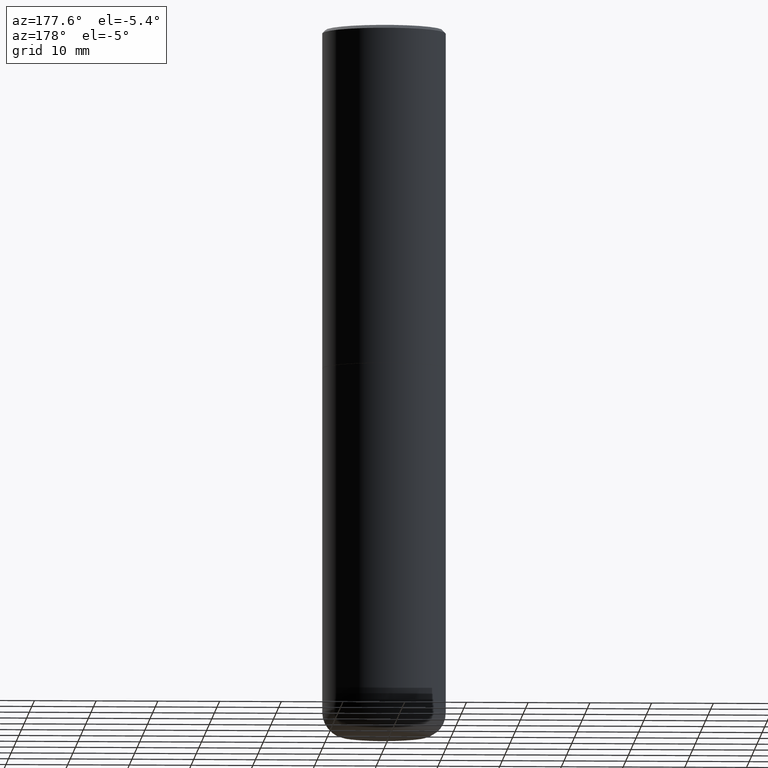
[diagram: clean part render]
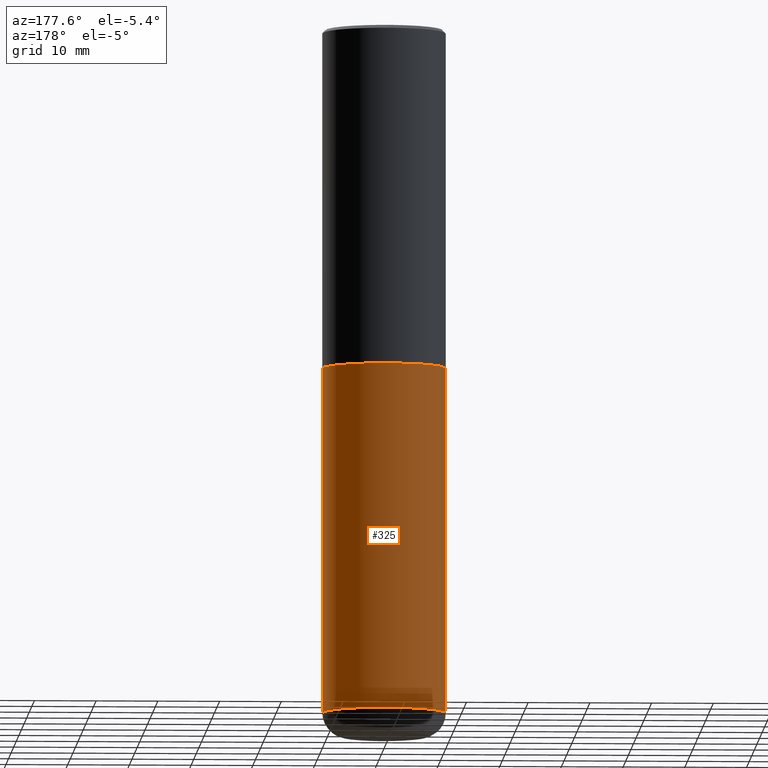
[diagram: same view with one face highlighted and labeled with its STEP entity id]
A machine part, auxiliary view. The second image highlights one B-rep face of the part: STEP entity #325.
In plain terms, the highlighted cylindrical surface (partial cylindrical patch) has radius 10 mm, axis along (-0, 0, 1).
Its self-contained STEP definition (entity closure, byte-faithful):
#1 = EDGE_CURVE ( 'NONE', #216, #47, #155, .T. ) ;
#3 = CARTESIAN_POINT ( 'NONE',  ( -0.3937000000000001054, -1.246071584819091497E-14, -4.370099999999998985 ) ) ;
#13 = LINE ( 'NONE', #203, #262 ) ;
#17 = DIRECTION ( 'NONE',  ( 1.000000000000000000, -6.982962677686261977E-15, 0.000000000000000000 ) ) ;
#20 = ORIENTED_EDGE ( 'NONE', *, *, #402, .F. ) ;
#36 = VECTOR ( 'NONE', #306, 39.37007874015748143 ) ;
#47 = VERTEX_POINT ( 'NONE', #3 ) ;
#51 = CIRCLE ( 'NONE', #315, 0.3937000000000000499 ) ;
#57 = ORIENTED_EDGE ( 'NONE', *, *, #1, .T. ) ;
#58 = DIRECTION ( 'NONE',  ( -2.445468806185136597E-29, 3.491481338843145583E-15, 1.000000000000000000 ) ) ;
#65 = EDGE_CURVE ( 'NONE', #47, #412, #13, .T. ) ;
#66 = CARTESIAN_POINT ( 'NONE',  ( 5.295418152913293224E-29, -7.560453691130945845E-15, -2.165399999999999547 ) ) ;
#68 = CARTESIAN_POINT ( 'NONE',  ( -0.3937000000000000499, -8.611881394317173410E-15, -2.165399999999999547 ) ) ;
#71 = CARTESIAN_POINT ( 'NONE',  ( 0.3937000000000001054, -2.749192406205084005E-15, 1.919750796630860452E-29 ) ) ;
#85 = ORIENTED_EDGE ( 'NONE', *, *, #65, .T. ) ;
#101 = CARTESIAN_POINT ( 'NONE',  ( 0.3937000000000001054, -1.800731500508351219E-14, -4.370099999999998985 ) ) ;
#119 = VERTEX_POINT ( 'NONE', #198 ) ;
#123 = DIRECTION ( 'NONE',  ( 1.000000000000000000, -6.982962677686265133E-15, 0.000000000000000000 ) ) ;
#145 = CARTESIAN_POINT ( 'NONE',  ( 1.068694322990966450E-28, -1.525812259887842897E-14, -4.370099999999998985 ) ) ;
#155 = CIRCLE ( 'NONE', #274, 0.3937000000000001054 ) ;
#173 = DIRECTION ( 'NONE',  ( -2.445468806185136597E-29, 3.491481338843145583E-15, 1.000000000000000000 ) ) ;
#177 = ORIENTED_EDGE ( 'NONE', *, *, #418, .F. ) ;
#198 = CARTESIAN_POINT ( 'NONE',  ( 0.3937000000000000499, -1.030964609733602906E-14, -2.165399999999999547 ) ) ;
#203 = CARTESIAN_POINT ( 'NONE',  ( -0.3937000000000001054, 2.797406750687515181E-15, -1.936584745033357016E-29 ) ) ;
#208 = EDGE_LOOP ( 'NONE', ( #57, #85, #20, #177 ) ) ;
#216 = VERTEX_POINT ( 'NONE', #101 ) ;
#218 = FACE_OUTER_BOUND ( 'NONE', #208, .T. ) ;
#262 = VECTOR ( 'NONE', #335, 39.37007874015748143 ) ;
#274 = AXIS2_PLACEMENT_3D ( 'NONE', #145, #173, #17 ) ;
#290 = AXIS2_PLACEMENT_3D ( 'NONE', #313, #58, #390 ) ;
#306 = DIRECTION ( 'NONE',  ( -2.445468806185136877E-29, 3.491481338843145188E-15, 1.000000000000000000 ) ) ;
#313 = CARTESIAN_POINT ( 'NONE',  ( 0.000000000000000000, 0.000000000000000000, 0.000000000000000000 ) ) ;
#315 = AXIS2_PLACEMENT_3D ( 'NONE', #66, #318, #123 ) ;
#318 = DIRECTION ( 'NONE',  ( -2.445468806185136597E-29, 3.491481338843145583E-15, 1.000000000000000000 ) ) ;
#320 = LINE ( 'NONE', #71, #36 ) ;
#325 = ADVANCED_FACE ( 'NONE', ( #218 ), #354, .T. ) ;
#335 = DIRECTION ( 'NONE',  ( -2.445468806185136877E-29, 3.491481338843145188E-15, 1.000000000000000000 ) ) ;
#354 = CYLINDRICAL_SURFACE ( 'NONE', #290, 0.3937000000000001054 ) ;
#390 = DIRECTION ( 'NONE',  ( 1.000000000000000000, -6.982962677686266711E-15, 4.876176775795935793E-29 ) ) ;
#402 = EDGE_CURVE ( 'NONE', #119, #412, #51, .T. ) ;
#412 = VERTEX_POINT ( 'NONE', #68 ) ;
#418 = EDGE_CURVE ( 'NONE', #216, #119, #320, .T. ) ;